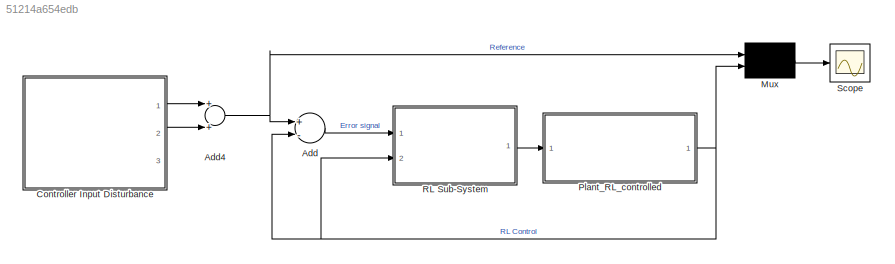
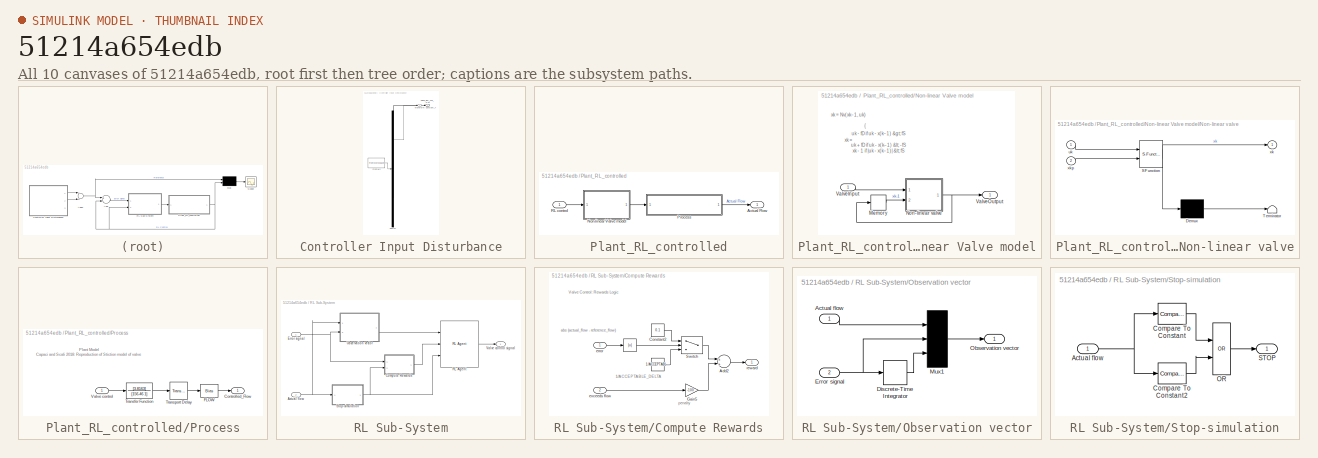
[diagram: thumbnail index - all 10 canvases of the model, root first then tree order]
MODEL slx_51214a654edb
KIND model
CONFIG AbsTol = auto
CONFIG EnableMultiTasking = off
CONFIG FixedStep = auto
CONFIG MaxStep = auto
CONFIG MinStep = auto
CONFIG RelTol = 1e-3
CONFIG SampleTimeConstraint = Unconstrained
CONFIG Solver = VariableStepAuto
CONFIG SolverName = VariableStepAuto
CONFIG StartTime = 0.0
CONFIG StopTime = 2000
BLOCK [Sum] Add
  InputSameDT = off
  Inputs = +-
  OutDataTypeStr = Inherit: Inherit via internal rule
  Ports = [2, 1]
  SaturateOnIntegerOverflow = off
BLOCK [Sum] Add4
  InputSameDT = off
  OutDataTypeStr = Inherit: Inherit via internal rule
  Ports = [2, 1]
  SaturateOnIntegerOverflow = off
BLOCK [SubSystem] Controller Input Disturbance
  ClipboardFcn = sigbuilder_block('clipboard');
  CloseFcn = sigbuilder_block('close');
  ContinueFcn = sigbuilder_block('continue');
  CopyFcn = sigbuilder_block('copy');
  DeleteFcn = sigbuilder_block('delete');
  LoadFcn = sigbuilder_block('load');
  MaskHideContents = on
  ModelCloseFcn = sigbuilder_block('modelClose');
  NameChangeFcn = sigbuilder_block('namechange');
  OpenFcn = sigbuilder_block('open',[0 102 1024.8 489.6 ]);
  PauseFcn = sigbuilder_block('pause');
  Ports = [0, 3]
  PreSaveFcn = sigbuilder_block('preSave');
  RequestExecContextInheritance = off
  StartFcn = sigbuilder_block('start');
  StopFcn = sigbuilder_block('stop');
  Tag = STV Subsys
BLOCK [Outport] Controller Input Disturbance/Constant_7
  IconDisplay = Port number
  Port = 3
  Tag = STV Outport
BLOCK [Demux] Controller Input Disturbance/Demux
  Outputs = 3
  Ports = [1, 3]
  Tag = STV Demux
BLOCK [FromWorkspace] Controller Input Disturbance/FromWs
  SampleTime = 0
  Tag = STV FromWs
  VariableName = tuvar
  ZeroCross = on
BLOCK [Outport] Controller Input Disturbance/Noise_BM_1Hz_0.01
  IconDisplay = Port number
  Port = 2
  Tag = STV Outport
BLOCK [Outport] Controller Input Disturbance/Waveform
  IconDisplay = Port number
  Tag = STV Outport
BLOCK [Mux] Mux
  DisplayOption = bar
  Inputs = 2
  Ports = [2, 1]
BLOCK [SubSystem] Plant_RL_controlled
  Ports = [1, 1]
  RequestExecContextInheritance = off
BLOCK [Outport] Plant_RL_controlled/Actual Flow
  IconDisplay = Port number
BLOCK [SubSystem] Plant_RL_controlled/Non-linear Valve model
  Ports = [1, 1]
  RequestExecContextInheritance = off
BLOCK [Memory] Plant_RL_controlled/Non-linear Valve model/Memory
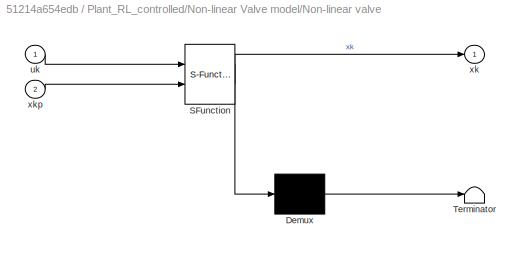
BLOCK [SubSystem] Plant_RL_controlled/Non-linear Valve model/Non-linear valve
  ErrorFcn = Stateflow.Translate.translate
  PermitHierarchicalResolution = ExplicitOnly
  Ports = [2, 1]
  RequestExecContextInheritance = off
  SFBlockType = MATLAB Function
  TreatAsAtomicUnit = on
BLOCK [Demux] Plant_RL_controlled/Non-linear Valve model/Non-linear valve/ Demux 
  Outputs = 1
  Ports = [1, 1]
BLOCK [S-Function] Plant_RL_controlled/Non-linear Valve model/Non-linear valve/ SFunction 
  EnableBusSupport = on
  FunctionName = sf_sfun
  PortCounts = [2 2]
  Ports = [2, 2]
  SFcnIsStateOwnerBlock = off
  SFunctionDeploymentMode = off
  Tag = Stateflow S-Function GRADED_RL_PLOTS_Simulink 2
BLOCK [Terminator] Plant_RL_controlled/Non-linear Valve model/Non-linear valve/ Terminator 
BLOCK [Inport] Plant_RL_controlled/Non-linear Valve model/Non-linear valve/uk
  IconDisplay = Port number
BLOCK [Outport] Plant_RL_controlled/Non-linear Valve model/Non-linear valve/xk
  IconDisplay = Port number
BLOCK [Inport] Plant_RL_controlled/Non-linear Valve model/Non-linear valve/xkp
  IconDisplay = Port number
  Port = 2
BLOCK [Inport] Plant_RL_controlled/Non-linear Valve model/ValveInput
  IconDisplay = Port number
BLOCK [Outport] Plant_RL_controlled/Non-linear Valve model/ValveOutput
  IconDisplay = Port number
BLOCK [SubSystem] Plant_RL_controlled/Process
  Ports = [1, 1]
  RequestExecContextInheritance = off
BLOCK [Outport] Plant_RL_controlled/Process/Controlled_Flow
  IconDisplay = Port number
BLOCK [Bias] Plant_RL_controlled/Process/FLOW
  SaturateOnIntegerOverflow = off
BLOCK [TransferFcn] Plant_RL_controlled/Process/Transfer Function
  Denominator = [156.46 1]
  Numerator = [3.8163]
BLOCK [TransportDelay] Plant_RL_controlled/Process/Transport Delay 
  DelayTime = TIME_DELAY
  Ports = [1, 1]
BLOCK [Inport] Plant_RL_controlled/Process/Valve control
  IconDisplay = Port number
BLOCK [Inport] Plant_RL_controlled/RL control
  IconDisplay = Port number
BLOCK [SubSystem] RL Sub-System
  Ports = [2, 1]
  RequestExecContextInheritance = off
BLOCK [Inport] RL Sub-System/Actual flow
  IconDisplay = Port number
  Port = 2
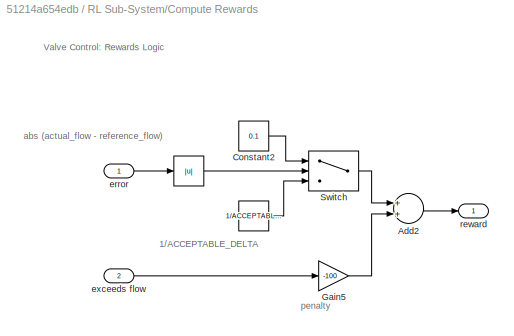
BLOCK [SubSystem] RL Sub-System/Compute Rewards
  Ports = [2, 1]
  RequestExecContextInheritance = off
BLOCK [Abs] RL Sub-System/Compute Rewards/ 
  SaturateOnIntegerOverflow = off
BLOCK [Sum] RL Sub-System/Compute Rewards/Add2
  InputSameDT = off
  OutDataTypeStr = Inherit: Inherit via internal rule
  Ports = [2, 1]
  SaturateOnIntegerOverflow = off
BLOCK [Constant] RL Sub-System/Compute Rewards/Constant2
  Value = 0.1
BLOCK [Gain] RL Sub-System/Compute Rewards/Gain5
  Gain = -100
  OutDataTypeStr = Inherit: Inherit via internal rule
  ParamDataTypeStr = Inherit: Inherit via internal rule
  SaturateOnIntegerOverflow = off
BLOCK [Switch] RL Sub-System/Compute Rewards/Switch
  Criteria = u2 > Threshold
  InputSameDT = off
  SaturateOnIntegerOverflow = off
  Threshold = ACCEPTABLE_DELTA
BLOCK [Inport] RL Sub-System/Compute Rewards/error
  IconDisplay = Port number
BLOCK [Inport] RL Sub-System/Compute Rewards/exceeds flow
  IconDisplay = Port number
  Port = 2
BLOCK [Outport] RL Sub-System/Compute Rewards/reward
  IconDisplay = Port number
BLOCK [Inport] RL Sub-System/Error signal
  IconDisplay = Port number
BLOCK [SubSystem] RL Sub-System/Observation vector
  Ports = [2, 1]
  RequestExecContextInheritance = off
BLOCK [Inport] RL Sub-System/Observation vector/Actual flow
  IconDisplay = Port number
BLOCK [DiscreteIntegrator] RL Sub-System/Observation vector/Discrete-Time Integrator
  ICPrevOutput = DiscIntNeverNeededParam
  ICPrevScaledInput = DiscIntNeverNeededParam
  InitialConditionSetting = Auto
  Ports = [1, 1]
  SampleTime = Ts
BLOCK [Inport] RL Sub-System/Observation vector/Error signal
  IconDisplay = Port number
  Port = 2
BLOCK [Mux] RL Sub-System/Observation vector/Mux1
  DisplayOption = bar
  Inputs = 3
  Ports = [3, 1]
BLOCK [Outport] RL Sub-System/Observation vector/Observation vector
  IconDisplay = Port number
BLOCK [Reference] RL Sub-System/RL Agent  REF=rllib/RL Agent
  Ports = [3, 1]
  SourceBlock = rllib/RL Agent
  SourceProductBaseCode = RL
  SourceProductName = Reinforcement Learning Toolbox
  SourceType = RL Agent
BLOCK [SubSystem] RL Sub-System/Stop-simulation
  Ports = [1, 1]
  RequestExecContextInheritance = off
BLOCK [Inport] RL Sub-System/Stop-simulation/Actual flow
  IconDisplay = Port number
BLOCK [Reference] RL Sub-System/Stop-simulation/Compare To Constant  REF=simulink/Logic and Bit
Operations/Compare
To Constant
  Ports = [1, 1]
  SourceBlock = simulink/Logic and Bit\nOperations/Compare\nTo Constant
  SourceProductBaseCode = SL
  SourceProductName = Simulink
  SourceType = Compare To Constant
BLOCK [Reference] RL Sub-System/Stop-simulation/Compare To Constant2  REF=simulink/Logic and Bit
Operations/Compare
To Constant
  Ports = [1, 1]
  SourceBlock = simulink/Logic and Bit\nOperations/Compare\nTo Constant
  SourceProductBaseCode = SL
  SourceProductName = Simulink
  SourceType = Compare To Constant
BLOCK [Logic] RL Sub-System/Stop-simulation/OR
  AllPortsSameDT = off
  IconShape = distinctive
  Operator = OR
  OutDataTypeStr = boolean
  Ports = [2, 1]
BLOCK [Outport] RL Sub-System/Stop-simulation/STOP
  IconDisplay = Port number
BLOCK [Outport] RL Sub-System/Valve control signal
  IconDisplay = Port number
BLOCK [Scope] Scope
  Floating = off
  NumInputPorts = 1
  Ports = [1]
  ScopeSpecificationString = Simulink.scopes.TimeScopeBlockCfg('CurrentConfiguration', extmgr.ConfigurationSet(extmgr.Configuration('Core','General UI',true,'FigureColor',[1 1 1]),extmgr.Configuration('Core','Source UI',true),extmgr.Configuration('Sources','WiredSimulink',true),extmgr.Configuration('Visuals','Time Domain',true,'SerializedDisplays',{struct('MinYLimReal','-12.50433','MaxYLimReal','112.539','YLabelReal','Control...<+2124ch>
ANNOTATION Plant_RL_controlled/Non-linear Valve model: {
ANNOTATION Plant_RL_controlled/Non-linear Valve model: uk - fD if uk - x(k−1) > fS uk + fD if uk - x(k−1) < -fS xk - 1 if |uk - x(k−1)| < fS
ANNOTATION Plant_RL_controlled/Non-linear Valve model: xk =
ANNOTATION Plant_RL_controlled/Non-linear Valve model: xk = Nv(xk−1, uk)
ANNOTATION Plant_RL_controlled/Process: Plant Model Capaci and Scali 2018 : Reproduction of Stiction model of valve
ANNOTATION RL Sub-System/Compute Rewards: Valve Control: Rewards Logic
ANNOTATION RL Sub-System/Compute Rewards: 1/ACCEPTABLE_DELTA
ANNOTATION RL Sub-System/Compute Rewards: abs (actual_flow - reference_flow)
ANNOTATION RL Sub-System/Compute Rewards: penalty
NET Add4:1 -> Add:1, Mux:1
LINE Add:1 -> RL Sub-System:1
LINE Controller Input Disturbance:1 -> Add4:1
LINE Controller Input Disturbance:2 -> Add4:2
LINE Mux:1 -> Scope:1
LINE Plant_RL_controlled/Non-linear Valve model/Memory:1 -> Plant_RL_controlled/Non-linear Valve model/Non-linear valve:2
NET Plant_RL_controlled/Non-linear Valve model/Non-linear valve:1 -> Plant_RL_controlled/Non-linear Valve model/Memory:1, Plant_RL_controlled/Non-linear Valve model/ValveOutput:1
LINE Plant_RL_controlled/Non-linear Valve model/ValveInput:1 -> Plant_RL_controlled/Non-linear Valve model/Non-linear valve:1
LINE Plant_RL_controlled/Non-linear Valve model:1 -> Plant_RL_controlled/Process:1
LINE Plant_RL_controlled/Process/FLOW:1 -> Plant_RL_controlled/Process/Controlled_Flow:1
LINE Plant_RL_controlled/Process/Transfer Function:1 -> Plant_RL_controlled/Process/Transport Delay :1
LINE Plant_RL_controlled/Process/Transport Delay :1 -> Plant_RL_controlled/Process/FLOW:1
LINE Plant_RL_controlled/Process/Valve control:1 -> Plant_RL_controlled/Process/Transfer Function:1
LINE Plant_RL_controlled/Process:1 -> Plant_RL_controlled/Actual Flow:1
LINE Plant_RL_controlled/RL control:1 -> Plant_RL_controlled/Non-linear Valve model:1
NET Plant_RL_controlled:1 -> Add:2, Mux:2, RL Sub-System:2
NET RL Sub-System/Actual flow:1 -> RL Sub-System/Observation vector:1, RL Sub-System/Stop-simulation:1
NET RL Sub-System/Compute Rewards/ :1 -> RL Sub-System/Compute Rewards/Switch:2, RL Sub-System/Compute Rewards/Switch:3
LINE RL Sub-System/Compute Rewards/Add2:1 -> RL Sub-System/Compute Rewards/reward:1
LINE RL Sub-System/Compute Rewards/Constant2:1 -> RL Sub-System/Compute Rewards/Switch:1
LINE RL Sub-System/Compute Rewards/Gain5:1 -> RL Sub-System/Compute Rewards/Add2:2
LINE RL Sub-System/Compute Rewards/Switch:1 -> RL Sub-System/Compute Rewards/Add2:1
LINE RL Sub-System/Compute Rewards/error:1 -> RL Sub-System/Compute Rewards/ :1
LINE RL Sub-System/Compute Rewards/exceeds flow:1 -> RL Sub-System/Compute Rewards/Gain5:1
LINE RL Sub-System/Compute Rewards:1 -> RL Sub-System/RL Agent:2
NET RL Sub-System/Error signal:1 -> RL Sub-System/Compute Rewards:1, RL Sub-System/Observation vector:2
LINE RL Sub-System/Observation vector/Actual flow:1 -> RL Sub-System/Observation vector/Mux1:1
LINE RL Sub-System/Observation vector/Discrete-Time Integrator:1 -> RL Sub-System/Observation vector/Mux1:3
NET RL Sub-System/Observation vector/Error signal:1 -> RL Sub-System/Observation vector/Discrete-Time Integrator:1, RL Sub-System/Observation vector/Mux1:2
LINE RL Sub-System/Observation vector/Mux1:1 -> RL Sub-System/Observation vector/Observation vector:1
LINE RL Sub-System/Observation vector:1 -> RL Sub-System/RL Agent:1
LINE RL Sub-System/RL Agent:1 -> RL Sub-System/Valve control signal:1
NET RL Sub-System/Stop-simulation/Actual flow:1 -> RL Sub-System/Stop-simulation/Compare To Constant2:1, RL Sub-System/Stop-simulation/Compare To Constant:1
LINE RL Sub-System/Stop-simulation/Compare To Constant2:1 -> RL Sub-System/Stop-simulation/OR:2
LINE RL Sub-System/Stop-simulation/Compare To Constant:1 -> RL Sub-System/Stop-simulation/OR:1
LINE RL Sub-System/Stop-simulation/OR:1 -> RL Sub-System/Stop-simulation/STOP:1
NET RL Sub-System/Stop-simulation:1 -> RL Sub-System/Compute Rewards:2, RL Sub-System/RL Agent:3
LINE RL Sub-System:1 -> Plant_RL_controlled:1
note: NET lines group one-source signal fan-out (src -> all destinations, sorted); 1:1 wires keep LINE
CHART Plant_RL_controlled/Non-linear Valve model/Non-linear valve states=1 transitions=1
  STATE_LABEL 'eML_blk_kernel()'
  STATE_LABEL 'SCRIPT:\nfunction xk = fcn(uk, xkp)\n% ----------------------------------------------------------------------------------------\n% DDPG RL AGENT EVALUATION circuit Plant Model (RLVC2 | Verified 15-Jul-2020)\n% Non-Linear valve model: Capaci and Scali (2018)\n% Friction values conform to benchmark flow rates used in Capaci (2016)\n% ------------------------------------------------------------------------...<+432ch>'
